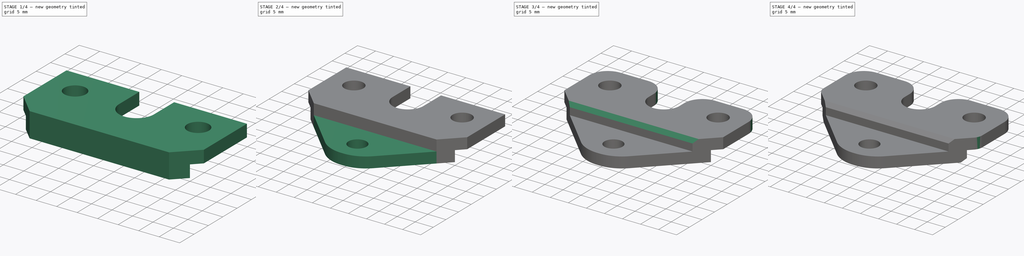
[diagram: build sequence overview — one tinted view per stage of 4, left to right]
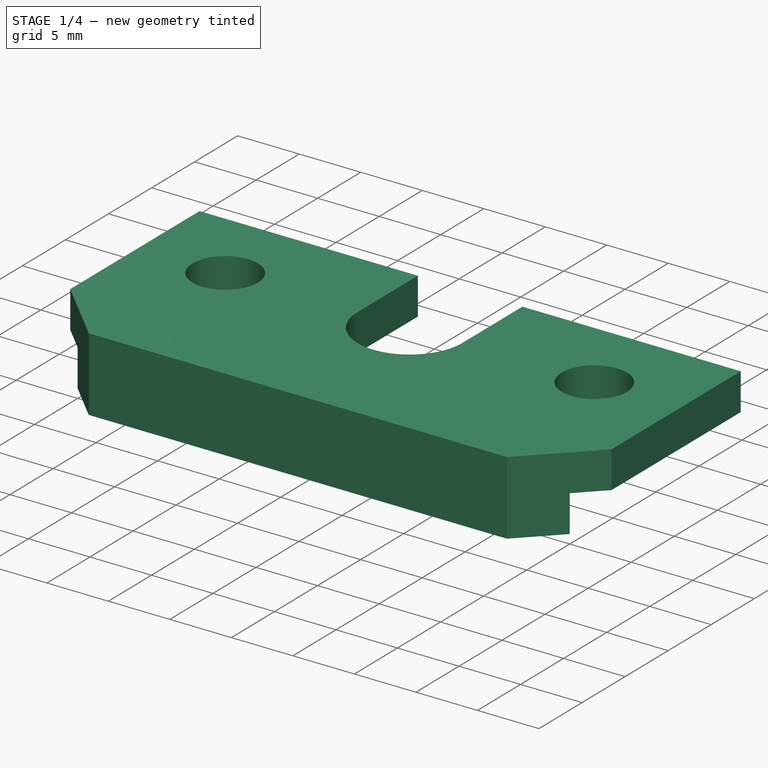
[diagram: stage 1 of 4 — iso view after this stage's code; geometry added in this stage tinted green]
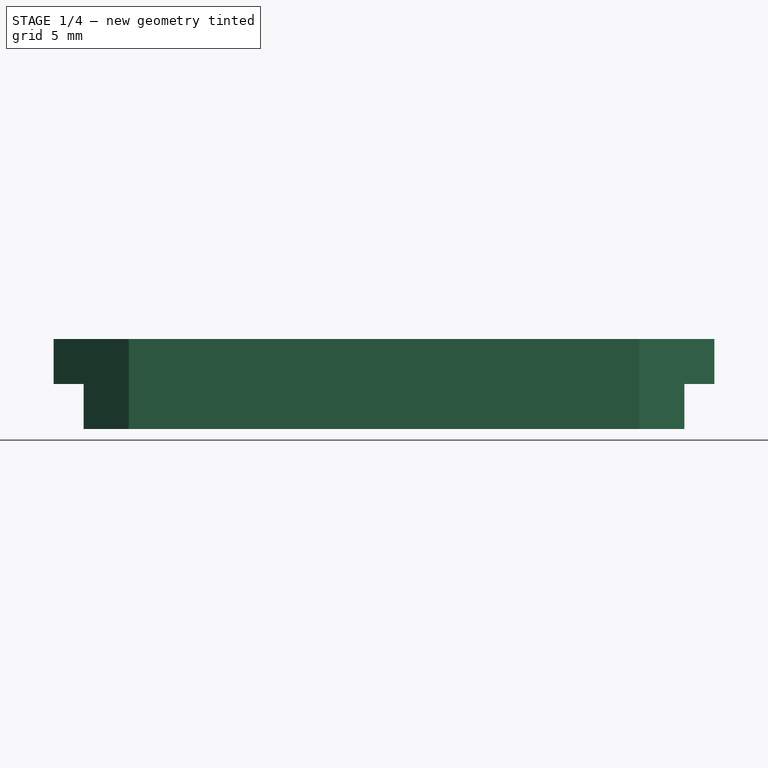
[diagram: stage 1 of 4 — front view after this stage's code; geometry added in this stage tinted green]
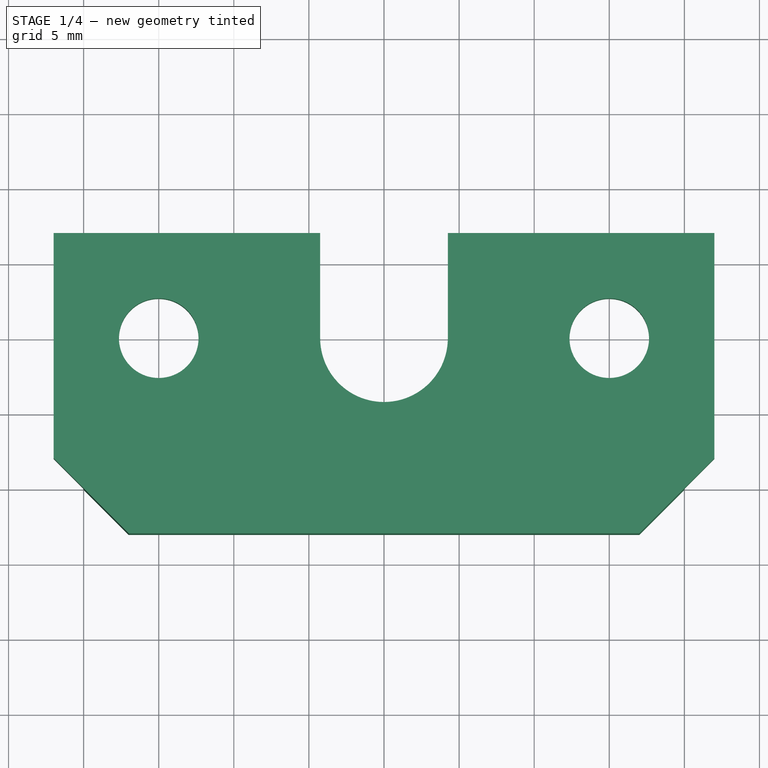
[diagram: stage 1 of 4 — top view after this stage's code; geometry added in this stage tinted green]
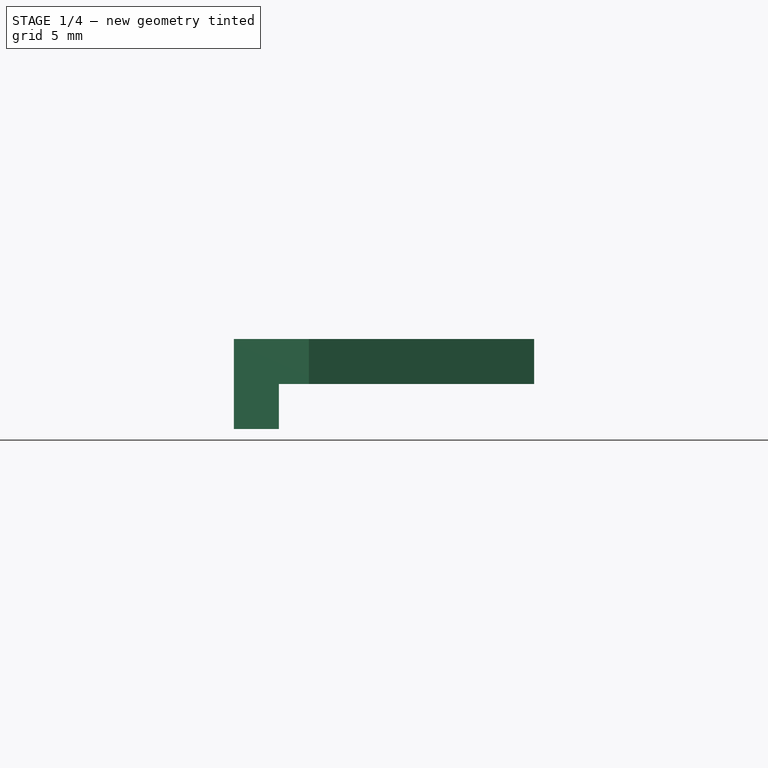
[diagram: stage 1 of 4 — right view after this stage's code; geometry added in this stage tinted green]
FCSTD DOCUMENT  (FreeCAD 0.19R24276 (Git))
Label: roller_support
License: All rights reserved
LicenseURL: http://en.wikipedia.org/wiki/All_rights_reserved
objects: PartDesign::Fillet×4, Sketcher::SketchObject×3, PartDesign::Pad×3, PartDesign::Chamfer×2, PartDesign::Body×1
note: 22 computed .brp shape members not serialized (recipe doc carries the construction recipe); baked Part::Feature solids carry a one-line shape summary decoded from their .brp

FEATURE [Sketcher::SketchObject] Sketch
  FullyConstrained = false
  MapMode = 5
  Support = -> [XY_Plane]
  sketch-geometry (27):
    g0: Circle CenterX=-15 CenterY=0 CenterZ=0 NormalX=0 NormalY=0 NormalZ=1 AngleXU=0 Radius=2.65
    g1: Circle CenterX=15 CenterY=0 CenterZ=0 NormalX=0 NormalY=0 NormalZ=1 AngleXU=0 Radius=2.65
    g2: ArcOfCircle CenterX=0 CenterY=0 CenterZ=0 NormalX=0 NormalY=0 NormalZ=1 AngleXU=0 Radius=4.25 StartAngle=3.14159 EndAngle=6.28319
    g3: LineSegment StartX=-22 StartY=7 StartZ=0 EndX=-4.25 EndY=7 EndZ=0
    g4: LineSegment StartX=22 StartY=7 StartZ=0 EndX=22 EndY=-26 EndZ=0
    g5: LineSegment StartX=22 StartY=-26 StartZ=0 EndX=-22 EndY=-26 EndZ=0
    g6: LineSegment StartX=-22 StartY=-26 StartZ=0 EndX=-22 EndY=7 EndZ=0
    g7: LineSegment StartX=0 StartY=0 StartZ=0 EndX=0 EndY=-26 EndZ=0
    g8: Circle CenterX=0 CenterY=-20 CenterZ=0 NormalX=0 NormalY=0 NormalZ=1 AngleXU=0 Radius=2.5
    g9: LineSegment StartX=-4.25 StartY=-5e-16 StartZ=0 EndX=-4.25 EndY=7 EndZ=0
    g10: LineSegment StartX=4.25 StartY=0 StartZ=0 EndX=4.25 EndY=7 EndZ=0
    g11: LineSegment StartX=4.25 StartY=7 StartZ=0 EndX=22 EndY=7 EndZ=0
    g12: LineSegment StartX=-27.1648 StartY=-10 StartZ=0 EndX=22.6955 EndY=-10 EndZ=0
    g13: LineSegment StartX=-22 StartY=-8 StartZ=0 EndX=-4 EndY=-26 EndZ=0
    g14: LineSegment StartX=4 StartY=-26 StartZ=0 EndX=22 EndY=-8 EndZ=0
    g15: LineSegment StartX=22 StartY=-8 StartZ=0 EndX=22 EndY=7 EndZ=0
    g16: LineSegment StartX=22 StartY=7 StartZ=0 EndX=4.25 EndY=7 EndZ=0
    g17: LineSegment StartX=4.25 StartY=7 StartZ=0 EndX=4.25 EndY=0 EndZ=0
    g18: LineSegment StartX=-4.25 StartY=-5e-16 StartZ=0 EndX=-4.25 EndY=7 EndZ=0
    g19: LineSegment StartX=-4.25 StartY=7 StartZ=0 EndX=-22 EndY=7 EndZ=0
    g20: LineSegment StartX=-22 StartY=7 StartZ=0 EndX=-22 EndY=-8 EndZ=0
    g21: LineSegment StartX=-31.5358 StartY=-14 StartZ=0 EndX=42.4865 EndY=-14 EndZ=0
    g22: LineSegment StartX=-22 StartY=-8 StartZ=0 EndX=22 EndY=-8 EndZ=0
    g23: LineSegment StartX=-17 StartY=-13 StartZ=0 EndX=17 EndY=-13 EndZ=0
    g24: LineSegment StartX=22 StartY=-8 StartZ=0 EndX=17 EndY=-13 EndZ=0
    g25: LineSegment StartX=-22 StartY=-8 StartZ=0 EndX=-17 EndY=-13 EndZ=0
    g26: LineSegment StartX=-17 StartY=-13 StartZ=0 EndX=17 EndY=-13 EndZ=0
  constraints (67):
    c: PointOnObject(g0,g-1)
    c: Diameter(g0) = 5.3
    c: Equal(g0,g1)
    c: DistanceX(g0,g1) = 30
    c: Coincident(g2,g-1)
    c: Diameter(g2) = 8.5
    c: Symmetric(g0,g1,g-1)
    c: Coincident(g11,g4)
    c: Coincident(g4,g5)
    c: Coincident(g5,g6)
    c: Coincident(g6,g3)
    c: Horizontal(g3)
    c: Horizontal(g5)
    c: Vertical(g4)
    c: Vertical(g6)
    c: Coincident(g7,g-1)
    c: PointOnObject(g7,g-2)
    c: Symmetric(g5,g4,g7)
    c: DistanceY(g0,g3) = 7
    c: PointOnObject(g8,g7)
    c: Diameter(g8) = 5
    c: Vertical(g9)
    c: Vertical(g10)
    c: Tangent(g2,g9) = 1.5708
    c: Tangent(g2,g10) = -1.5708
    c: Tangent(g3,g11)
    c: Coincident(g9,g3)
    c: Coincident(g10,g11)
    c: DistanceY(g8,g2) = 20
    c: DistanceY(g7,g8) = 6
    c: Horizontal(g12)
    c: DistanceY(g12,g2) = 10
    c: DistanceX(g3,g4) = 44
    c: PointOnObject(g13,g5)
    c: PointOnObject(g14,g5)
    c: PointOnObject(g13,g6)
    c: PointOnObject(g14,g4)
    c: Angle(g6,g13) = 0.785398
    c: Angle(g14,g4) = 0.785398
    c: Coincident(g15,g4)
    c: Coincident(g16,g15)
    c: Coincident(g16,g10)
    c: Coincident(g17,g16)
    c: Coincident(g17,g2)
    c: Coincident(g18,g2)
    c: Coincident(g18,g3)
    c: Coincident(g19,g18)
    c: Coincident(g19,g3)
    c: Coincident(g20,g19)
    c: Coincident(g20,g13)
    c: Horizontal(g21)
    c: DistanceY(g21,g2) = 14
    c: Coincident(g22,g20)
    c: Horizontal(g22)
    c: DistanceY(g20,g19) = 15
    c: PointOnObject(g23,g14)
    c: PointOnObject(g23,g13)
    c: DistanceY(g23,g12) = 3
    c: Coincident(g24,g15)
    c: Coincident(g25,g20)
    c: Coincident(g26,g23)
    c: Coincident(g23,g26)
    c: Coincident(g23,g24)
    c: Coincident(g25,g26)
    c: Coincident(g14,g15)
    c: Coincident(g14,g22)
    c: Horizontal(g26)
FEATURE [PartDesign::Pad] Pad
  Direction = (1,1,1)
  Length = 3
  Length2 = 100
  Profile = -> Sketch
  Type = 0
FEATURE [Sketcher::SketchObject] Sketch001
  FullyConstrained = false
  MapMode = 5
  Support = -> [XY_Plane]
  sketch-geometry (31):
    g0: Circle CenterX=-15 CenterY=0 CenterZ=0 NormalX=0 NormalY=0 NormalZ=1 AngleXU=0 Radius=2.65
    g1: Circle CenterX=15 CenterY=0 CenterZ=0 NormalX=0 NormalY=0 NormalZ=1 AngleXU=0 Radius=2.65
    g2: ArcOfCircle CenterX=0 CenterY=0 CenterZ=0 NormalX=0 NormalY=0 NormalZ=1 AngleXU=0 Radius=4.25 StartAngle=3.14159 EndAngle=6.28319
    g3: LineSegment StartX=-22 StartY=7 StartZ=0 EndX=-4.25 EndY=7 EndZ=0
    g4: LineSegment StartX=22 StartY=7 StartZ=0 EndX=22 EndY=-26 EndZ=0
    g5: LineSegment StartX=22 StartY=-26 StartZ=0 EndX=-22 EndY=-26 EndZ=0
    g6: LineSegment StartX=-22 StartY=-26 StartZ=0 EndX=-22 EndY=7 EndZ=0
    g7: LineSegment StartX=0 StartY=0 StartZ=0 EndX=0 EndY=-26 EndZ=0
    g8: Circle CenterX=0 CenterY=-20 CenterZ=0 NormalX=0 NormalY=0 NormalZ=1 AngleXU=0 Radius=2.5
    g9: LineSegment StartX=-4.25 StartY=-1.4e-15 StartZ=0 EndX=-4.25 EndY=7 EndZ=0
    g10: LineSegment StartX=4.25 StartY=0 StartZ=0 EndX=4.25 EndY=7 EndZ=0
    g11: LineSegment StartX=4.25 StartY=7 StartZ=0 EndX=22 EndY=7 EndZ=0
    g12: LineSegment StartX=-20 StartY=-10 StartZ=0 EndX=20 EndY=-10 EndZ=0
    g13: LineSegment StartX=-22 StartY=-8 StartZ=0 EndX=-4 EndY=-26 EndZ=0
    g14: LineSegment StartX=4 StartY=-26 StartZ=0 EndX=22 EndY=-8 EndZ=0
    g15: LineSegment StartX=-4 StartY=-26 StartZ=0 EndX=4 EndY=-26 EndZ=0
    g16: LineSegment StartX=4 StartY=-26 StartZ=0 EndX=22 EndY=-8 EndZ=0
    g17: LineSegment StartX=22 StartY=-8 StartZ=0 EndX=22 EndY=7 EndZ=0
    g18: LineSegment StartX=22 StartY=7 StartZ=0 EndX=4.25 EndY=7 EndZ=0
    g19: LineSegment StartX=4.25 StartY=7 StartZ=0 EndX=4.25 EndY=0 EndZ=0
    g20: LineSegment StartX=-4.25 StartY=-1.4e-15 StartZ=0 EndX=-4.25 EndY=7 EndZ=0
    g21: LineSegment StartX=-4.25 StartY=7 StartZ=0 EndX=-22 EndY=7 EndZ=0
    g22: LineSegment StartX=-22 StartY=7 StartZ=0 EndX=-22 EndY=-8 EndZ=0
    g23: LineSegment StartX=-22 StartY=-8 StartZ=0 EndX=-4 EndY=-26 EndZ=0
    g24: LineSegment StartX=-31.5358 StartY=-14 StartZ=0 EndX=42.4865 EndY=-14 EndZ=0
    g25: LineSegment StartX=-22 StartY=-8 StartZ=0 EndX=22 EndY=-8 EndZ=0
    g26: LineSegment StartX=-17 StartY=-13 StartZ=0 EndX=17 EndY=-13 EndZ=0
    g27: LineSegment StartX=-17 StartY=-13 StartZ=0 EndX=17 EndY=-13 EndZ=0
    g28: LineSegment StartX=20 StartY=-10 StartZ=0 EndX=-20 EndY=-10 EndZ=0
    g29: LineSegment StartX=-17 StartY=-13 StartZ=0 EndX=-20 EndY=-10 EndZ=0
    g30: LineSegment StartX=20 StartY=-10 StartZ=0 EndX=17 EndY=-13 EndZ=0
  constraints (77):
    c: PointOnObject(g0,g-1)
    c: Diameter(g0) = 5.3
    c: Equal(g0,g1)
    c: DistanceX(g0,g1) = 30
    c: Coincident(g2,g-1)
    c: Diameter(g2) = 8.5
    c: Symmetric(g0,g1,g-1)
    c: Coincident(g11,g4)
    c: Coincident(g4,g5)
    c: Coincident(g5,g6)
    c: Coincident(g6,g3)
    c: Horizontal(g3)
    c: Horizontal(g5)
    c: Vertical(g4)
    c: Vertical(g6)
    c: Coincident(g7,g-1)
    c: PointOnObject(g7,g-2)
    c: Symmetric(g5,g4,g7)
    c: DistanceY(g0,g3) = 7
    c: PointOnObject(g8,g7)
    c: Diameter(g8) = 5
    c: Vertical(g9)
    c: Vertical(g10)
    c: Tangent(g2,g9) = 1.5708
    c: Tangent(g2,g10) = -1.5708
    c: Tangent(g3,g11)
    c: Coincident(g9,g3)
    c: Coincident(g10,g11)
    c: DistanceY(g8,g2) = 20
    c: DistanceY(g7,g8) = 6
    c: Horizontal(g12)
    c: DistanceX(g3,g4) = 44
    c: PointOnObject(g13,g5)
    c: PointOnObject(g14,g5)
    c: PointOnObject(g13,g6)
    c: PointOnObject(g14,g4)
    c: Angle(g6,g13) = 0.785398
    c: Angle(g14,g4) = 0.785398
    c: Coincident(g15,g13)
    c: Coincident(g15,g14)
    c: Coincident(g16,g15)
    c: Coincident(g16,g14)
    c: Coincident(g17,g16)
    c: Coincident(g17,g4)
    c: Coincident(g18,g17)
    c: Coincident(g18,g10)
    c: Coincident(g19,g18)
    c: Coincident(g19,g2)
    c: Coincident(g20,g2)
    c: Coincident(g20,g3)
    c: Coincident(g21,g20)
    c: Coincident(g21,g3)
    c: Coincident(g22,g21)
    c: Coincident(g22,g13)
    c: Coincident(g23,g22)
    c: Coincident(g23,g15)
    c: Horizontal(g24)
    c: DistanceY(g24,g2) = 14
    c: Coincident(g25,g22)
    c: Coincident(g25,g16)
    c: Horizontal(g25)
    c: DistanceY(g22,g21) = 15
    c: PointOnObject(g12,g13)
    c: PointOnObject(g12,g14)
    c: DistanceY(g12,g1) = 10
    c: Horizontal(g26)
    c: PointOnObject(g26,g14)
    c: PointOnObject(g26,g13)
    c: DistanceY(g26,g12) = 3
    c: Coincident(g27,g26)
    c: Coincident(g28,g12)
    c: Coincident(g29,g27)
    c: Coincident(g30,g28)
    c: Coincident(g27,g26)
    c: Coincident(g27,g30)
    c: Coincident(g28,g12)
    c: Coincident(g28,g29)
FEATURE [PartDesign::Pad] Pad001
  BaseFeature = -> Pad
  Direction = (1,1,1)
  Length = 3
  Length2 = 100
  Profile = -> Sketch001
  Reversed = true
  Type = 0
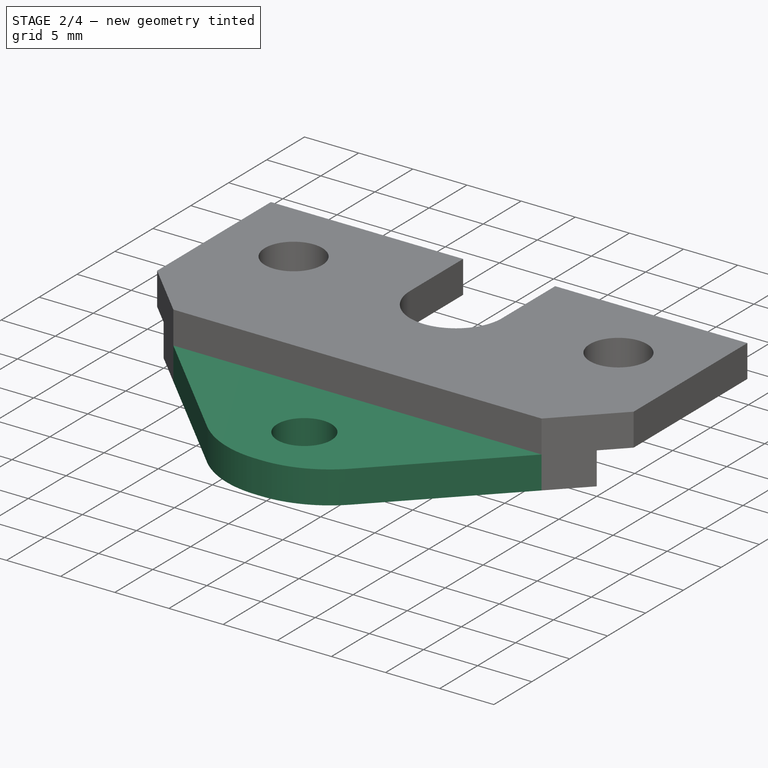
[diagram: stage 2 of 4 — iso view after this stage's code; geometry added in this stage tinted green]
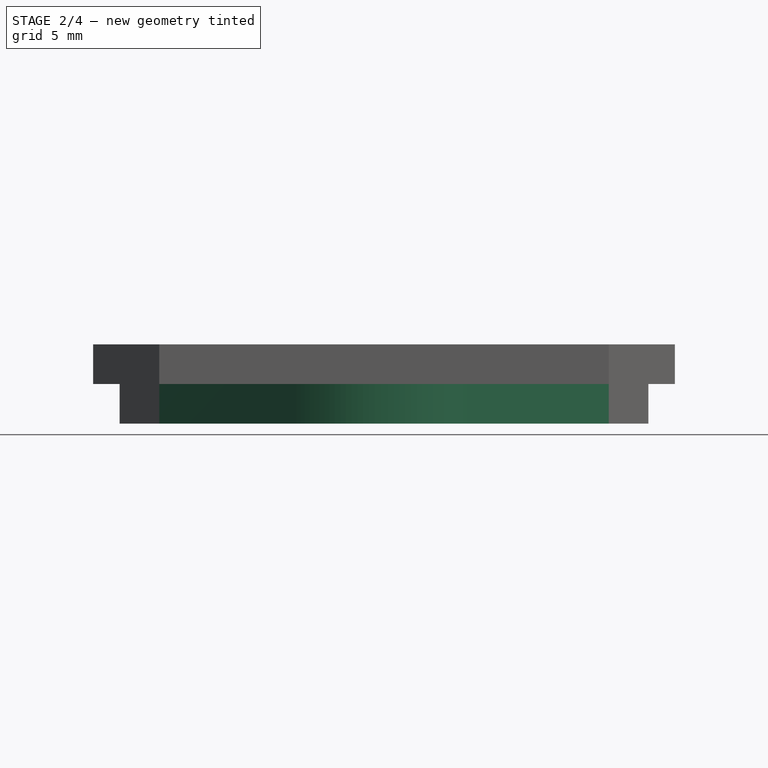
[diagram: stage 2 of 4 — front view after this stage's code; geometry added in this stage tinted green]
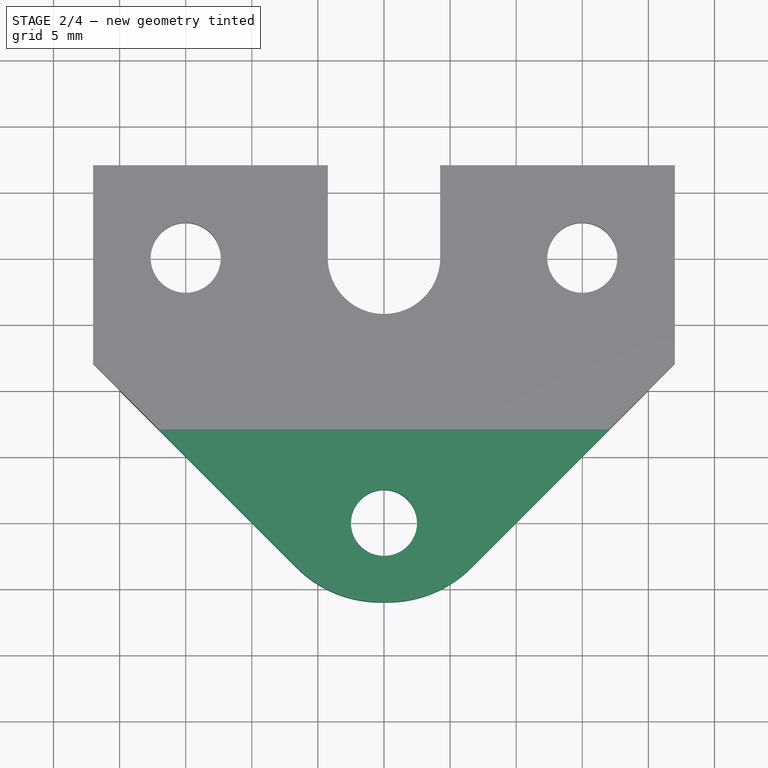
[diagram: stage 2 of 4 — top view after this stage's code; geometry added in this stage tinted green]
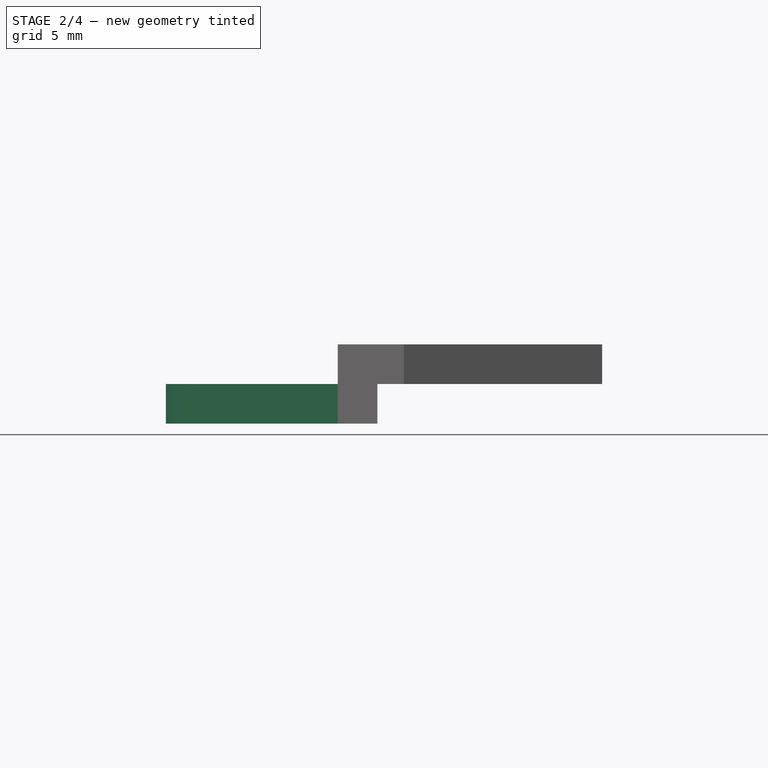
[diagram: stage 2 of 4 — right view after this stage's code; geometry added in this stage tinted green]
FEATURE [Sketcher::SketchObject] Sketch002
  FullyConstrained = false
  MapMode = 5
  Support = -> [XY_Plane]
  sketch-geometry (30):
    g0: Circle CenterX=-15 CenterY=0 CenterZ=0 NormalX=0 NormalY=0 NormalZ=1 AngleXU=0 Radius=2.65
    g1: Circle CenterX=15 CenterY=0 CenterZ=0 NormalX=0 NormalY=0 NormalZ=1 AngleXU=0 Radius=2.65
    g2: ArcOfCircle CenterX=0 CenterY=0 CenterZ=0 NormalX=0 NormalY=0 NormalZ=1 AngleXU=0 Radius=4.25 StartAngle=3.14159 EndAngle=6.28319
    g3: LineSegment StartX=-22 StartY=7 StartZ=0 EndX=-4.25 EndY=7 EndZ=0
    g4: LineSegment StartX=22 StartY=7 StartZ=0 EndX=22 EndY=-26 EndZ=0
    g5: LineSegment StartX=22 StartY=-26 StartZ=0 EndX=-22 EndY=-26 EndZ=0
    g6: LineSegment StartX=-22 StartY=-26 StartZ=0 EndX=-22 EndY=7 EndZ=0
    g7: LineSegment StartX=0 StartY=0 StartZ=0 EndX=0 EndY=-26 EndZ=0
    g8: Circle CenterX=0 CenterY=-20 CenterZ=0 NormalX=0 NormalY=0 NormalZ=1 AngleXU=0 Radius=2.5
    g9: LineSegment StartX=-4.25 StartY=-1.4e-15 StartZ=0 EndX=-4.25 EndY=7 EndZ=0
    g10: LineSegment StartX=4.25 StartY=-9e-16 StartZ=0 EndX=4.25 EndY=7 EndZ=0
    g11: LineSegment StartX=4.25 StartY=7 StartZ=0 EndX=22 EndY=7 EndZ=0
    g12: LineSegment StartX=-27.1648 StartY=-10 StartZ=0 EndX=22.6955 EndY=-10 EndZ=0
    g13: LineSegment StartX=-22 StartY=-8 StartZ=0 EndX=-4 EndY=-26 EndZ=0
    g14: LineSegment StartX=4 StartY=-26 StartZ=0 EndX=22 EndY=-8 EndZ=0
    g15: LineSegment StartX=22 StartY=-8 StartZ=0 EndX=22 EndY=7 EndZ=0
    g16: LineSegment StartX=22 StartY=7 StartZ=0 EndX=4.25 EndY=7 EndZ=0
    g17: LineSegment StartX=4.25 StartY=7 StartZ=0 EndX=4.25 EndY=-9e-16 EndZ=0
    g18: LineSegment StartX=-4.25 StartY=-1.4e-15 StartZ=0 EndX=-4.25 EndY=7 EndZ=0
    g19: LineSegment StartX=-4.25 StartY=7 StartZ=0 EndX=-22 EndY=7 EndZ=0
    g20: LineSegment StartX=-22 StartY=7 StartZ=0 EndX=-22 EndY=-8 EndZ=0
    g21: LineSegment StartX=-31.5358 StartY=-14 StartZ=0 EndX=42.4865 EndY=-14 EndZ=0
    g22: LineSegment StartX=-22 StartY=-8 StartZ=0 EndX=22 EndY=-8 EndZ=0
    g23: LineSegment StartX=-17 StartY=-13 StartZ=0 EndX=17 EndY=-13 EndZ=0
    g24: LineSegment StartX=22 StartY=-8 StartZ=0 EndX=17 EndY=-13 EndZ=0
    g25: LineSegment StartX=-22 StartY=-8 StartZ=0 EndX=-17 EndY=-13 EndZ=0
    g26: LineSegment StartX=-17 StartY=-13 StartZ=0 EndX=17 EndY=-13 EndZ=0
    g27: LineSegment StartX=17 StartY=-13 StartZ=0 EndX=4 EndY=-26 EndZ=0
    g28: LineSegment StartX=4 StartY=-26 StartZ=0 EndX=-4 EndY=-26 EndZ=0
    g29: LineSegment StartX=-17 StartY=-13 StartZ=0 EndX=-4 EndY=-26 EndZ=0
  constraints (73):
    c: PointOnObject(g0,g-1)
    c: Diameter(g0) = 5.3
    c: Equal(g0,g1)
    c: DistanceX(g0,g1) = 30
    c: Coincident(g2,g-1)
    c: Diameter(g2) = 8.5
    c: Symmetric(g0,g1,g-1)
    c: Coincident(g11,g4)
    c: Coincident(g4,g5)
    c: Coincident(g5,g6)
    c: Coincident(g6,g3)
    c: Horizontal(g3)
    c: Horizontal(g5)
    c: Vertical(g4)
    c: Vertical(g6)
    c: Coincident(g7,g-1)
    c: PointOnObject(g7,g-2)
    c: Symmetric(g5,g4,g7)
    c: DistanceY(g0,g3) = 7
    c: PointOnObject(g8,g7)
    c: Diameter(g8) = 5
    c: Vertical(g9)
    c: Vertical(g10)
    c: Tangent(g2,g9) = 1.5708
    c: Tangent(g2,g10) = -1.5708
    c: Tangent(g3,g11)
    c: Coincident(g9,g3)
    c: Coincident(g10,g11)
    c: DistanceY(g8,g2) = 20
    c: DistanceY(g7,g8) = 6
    c: Horizontal(g12)
    c: DistanceY(g12,g2) = 10
    c: DistanceX(g3,g4) = 44
    c: PointOnObject(g13,g5)
    c: PointOnObject(g14,g5)
    c: PointOnObject(g13,g6)
    c: PointOnObject(g14,g4)
    c: Angle(g6,g13) = 0.785398
    c: Angle(g14,g4) = 0.785398
    c: Coincident(g15,g4)
    c: Coincident(g16,g15)
    c: Coincident(g16,g10)
    c: Coincident(g17,g16)
    c: Coincident(g17,g2)
    c: Coincident(g18,g2)
    c: Coincident(g18,g3)
    c: Coincident(g19,g18)
    c: Coincident(g19,g3)
    c: Coincident(g20,g19)
    c: Coincident(g20,g13)
    c: Horizontal(g21)
    c: DistanceY(g21,g2) = 14
    c: Coincident(g22,g20)
    c: Horizontal(g22)
    c: DistanceY(g20,g19) = 15
    c: PointOnObject(g23,g14)
    c: PointOnObject(g23,g13)
    c: DistanceY(g23,g12) = 3
    c: Coincident(g24,g15)
    c: Coincident(g25,g20)
    c: Coincident(g26,g23)
    c: Coincident(g23,g26)
    c: Coincident(g23,g24)
    c: Coincident(g25,g26)
    c: Coincident(g14,g15)
    c: Coincident(g14,g22)
    c: Horizontal(g26)
    c: Coincident(g27,g26)
    c: Coincident(g28,g14)
    c: Coincident(g29,g26)
    c: Coincident(g29,g13)
    c: Coincident(g29,g28)
    c: Coincident(g28,g27)
FEATURE [PartDesign::Pad] Pad002
  BaseFeature = -> Pad001
  Direction = (1,1,1)
  Length = 3
  Length2 = 100
  Profile = -> Sketch002
  Reversed = true
  Type = 0
FEATURE [PartDesign::Fillet] Fillet
  Base = -> Pad002 [Edge54,Edge52]
  BaseFeature = -> Pad002
  Radius = 9
  SupportTransform = false
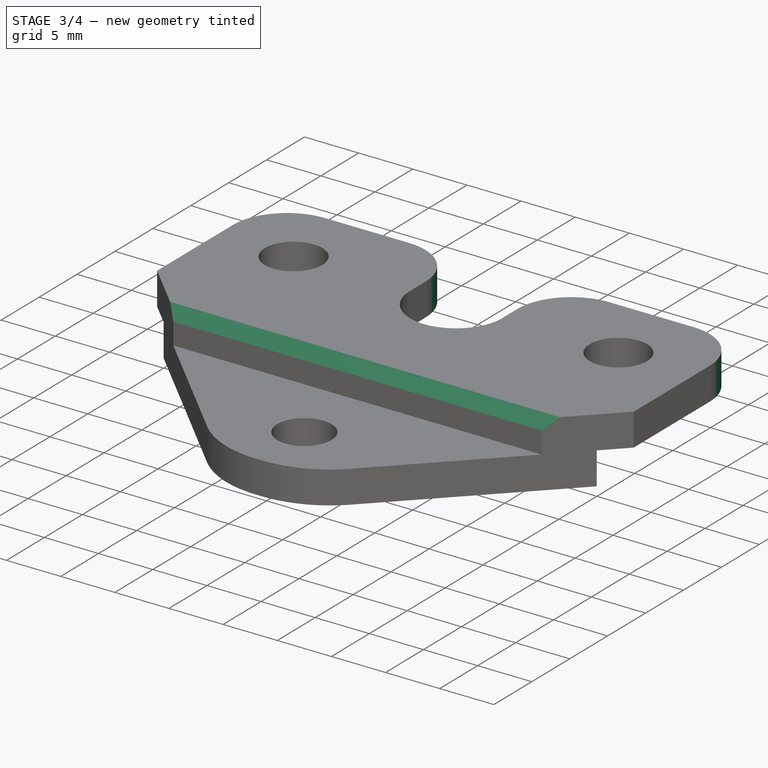
[diagram: stage 3 of 4 — iso view after this stage's code; geometry added in this stage tinted green]
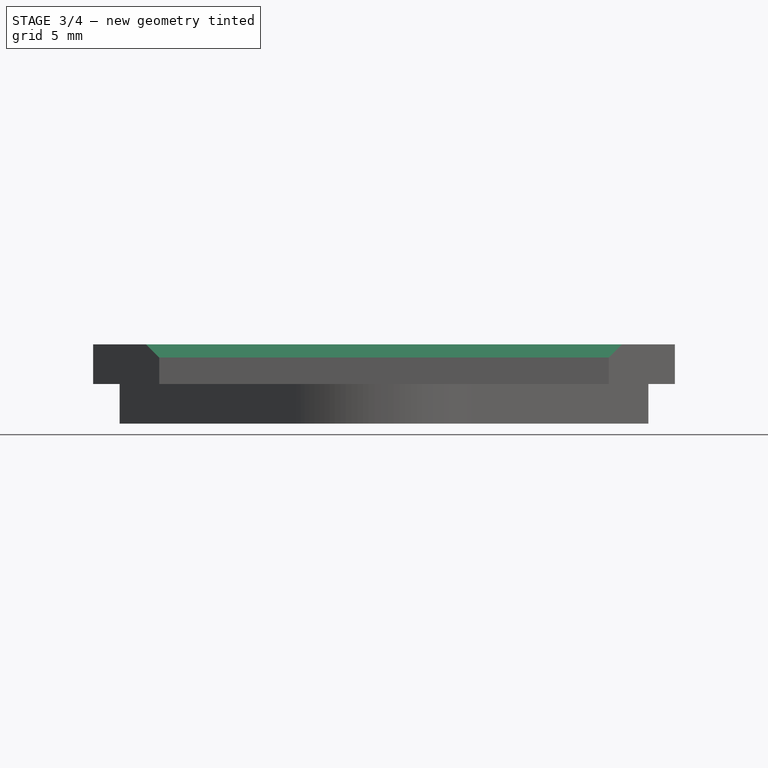
[diagram: stage 3 of 4 — front view after this stage's code; geometry added in this stage tinted green]
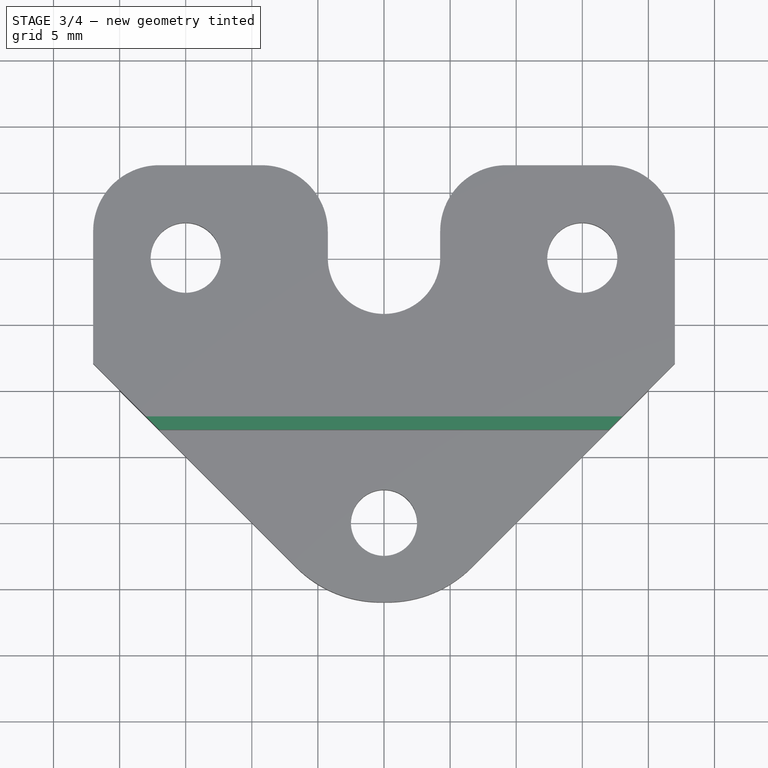
[diagram: stage 3 of 4 — top view after this stage's code; geometry added in this stage tinted green]
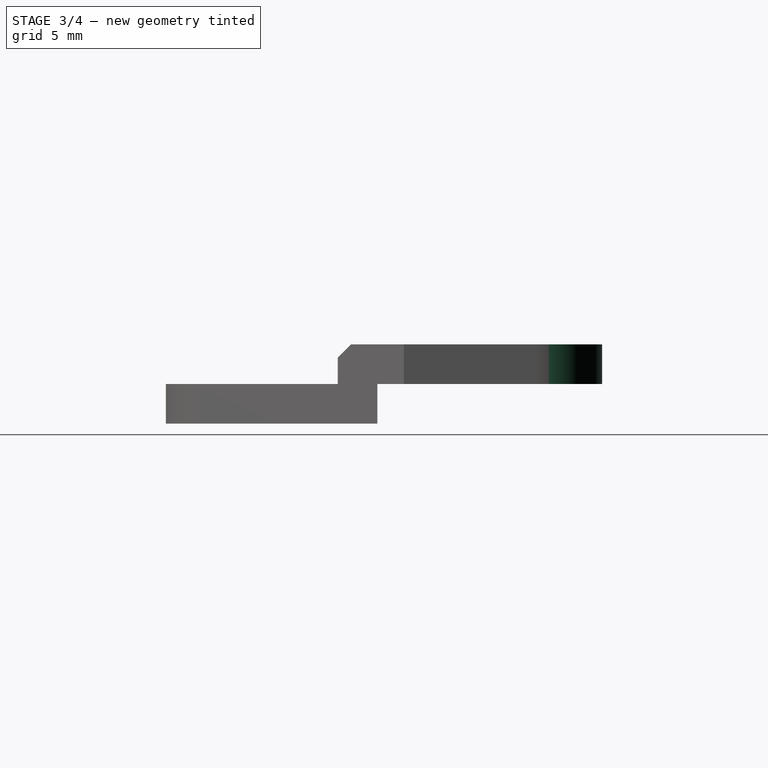
[diagram: stage 3 of 4 — right view after this stage's code; geometry added in this stage tinted green]
FEATURE [PartDesign::Fillet] Fillet001
  Base = -> Fillet [Edge58,Edge48]
  BaseFeature = -> Fillet
  Radius = 5
  SupportTransform = false
FEATURE [PartDesign::Fillet] Fillet002
  Base = -> Fillet001 [Edge29,Edge17]
  BaseFeature = -> Fillet001
  Radius = 5
  SupportTransform = false
FEATURE [PartDesign::Chamfer] Chamfer
  Angle = 45
  Base = -> Fillet002 [Edge9]
  BaseFeature = -> Fillet002
  ChamferType = 0
  FlipDirection = false
  Size = 1
  Size2 = 1
  SupportTransform = false
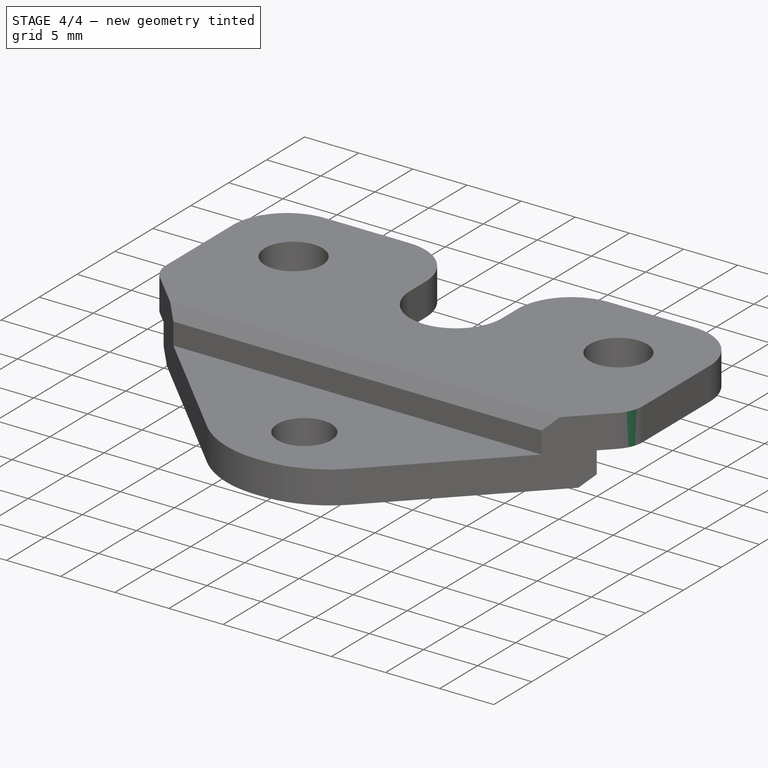
[diagram: stage 4 of 4 — iso view after this stage's code; geometry added in this stage tinted green]
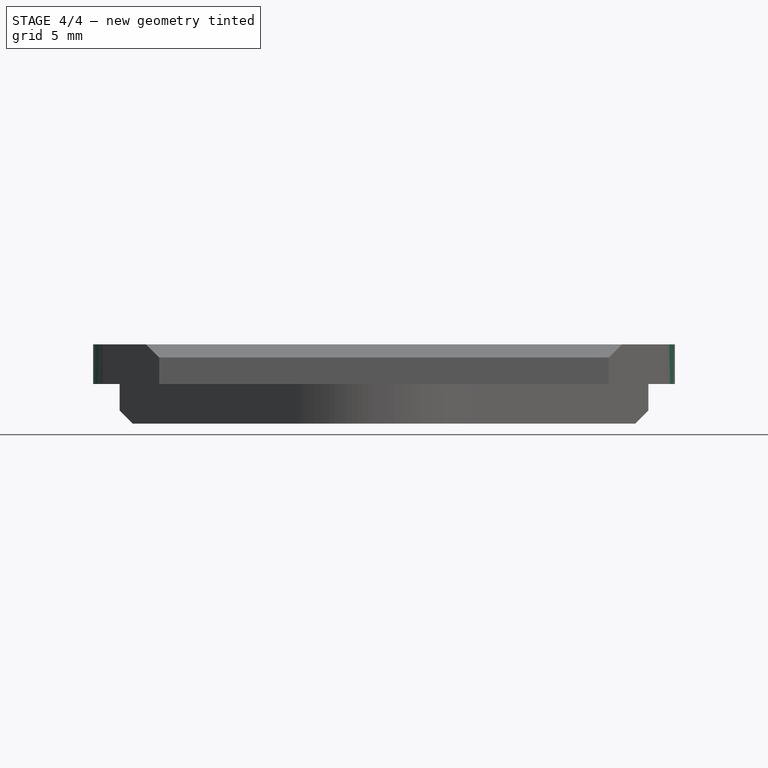
[diagram: stage 4 of 4 — front view after this stage's code; geometry added in this stage tinted green]
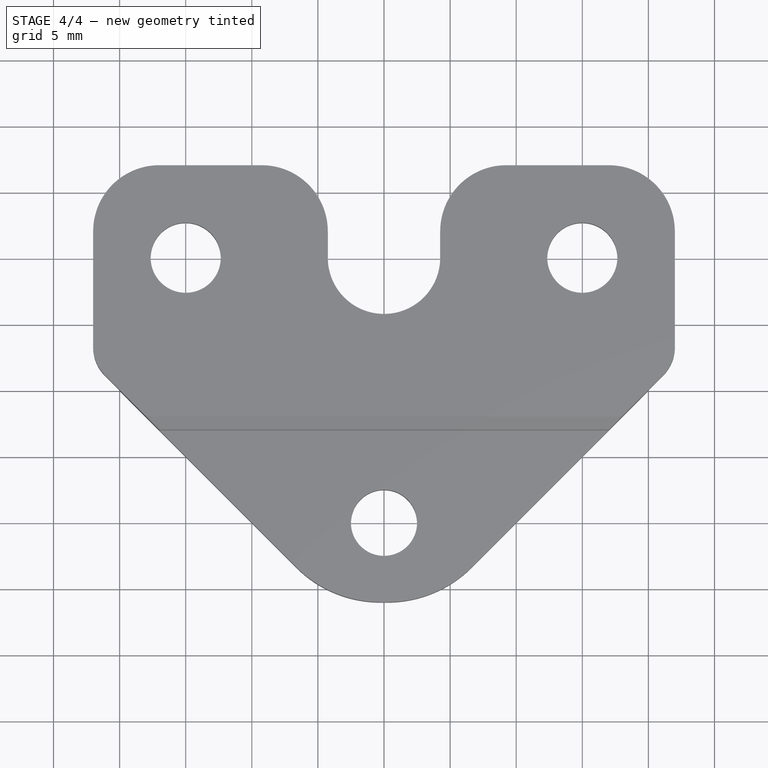
[diagram: stage 4 of 4 — top view after this stage's code; geometry added in this stage tinted green]
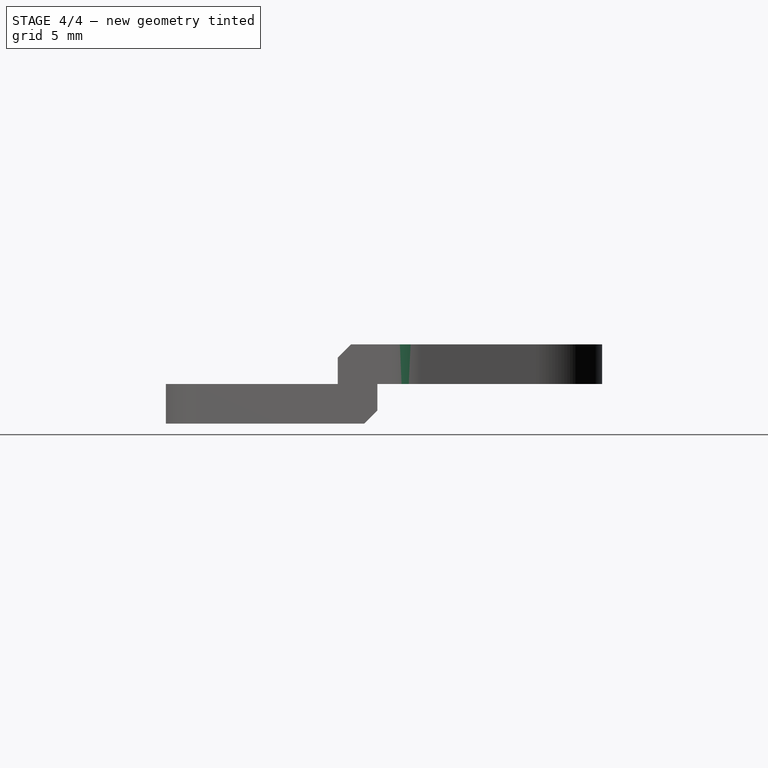
[diagram: stage 4 of 4 — right view after this stage's code; geometry added in this stage tinted green]
FEATURE [PartDesign::Chamfer] Chamfer001
  Angle = 45
  Base = -> Chamfer [Edge67]
  BaseFeature = -> Chamfer
  ChamferType = 0
  FlipDirection = false
  Size = 1
  Size2 = 1
  SupportTransform = false
FEATURE [PartDesign::Fillet] Fillet003
  Base = -> Chamfer001 [Edge15,Edge73]
  BaseFeature = -> Chamfer001
  Radius = 3
  SupportTransform = false
FEATURE [PartDesign::Body] Body
  Group = -> [Sketch,Pad,Sketch001,Pad001,Sketch002,Pad002,Fillet,Fillet001,Fillet002,Chamfer,Chamfer001,Fillet003]
  Origin = -> Origin
  Tip = -> Fillet003
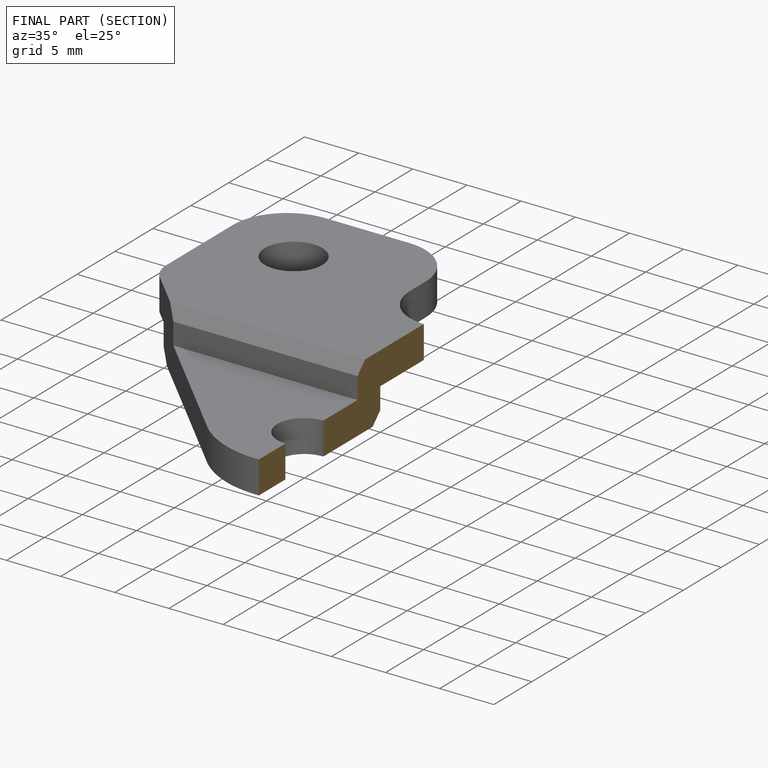
[diagram: finished part — half-section view (interior)]
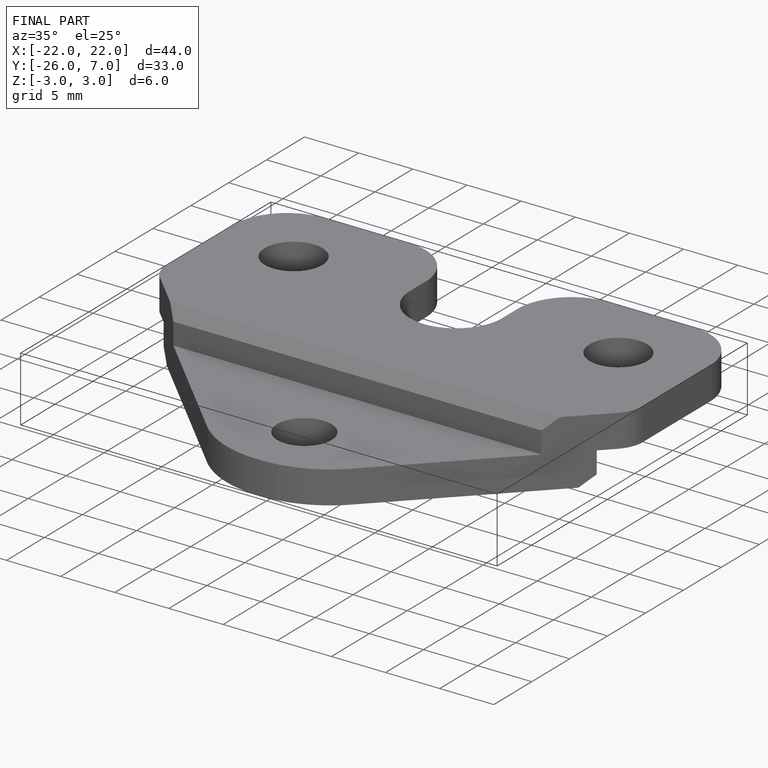
[diagram: finished part — iso view with bounding-box wireframe]
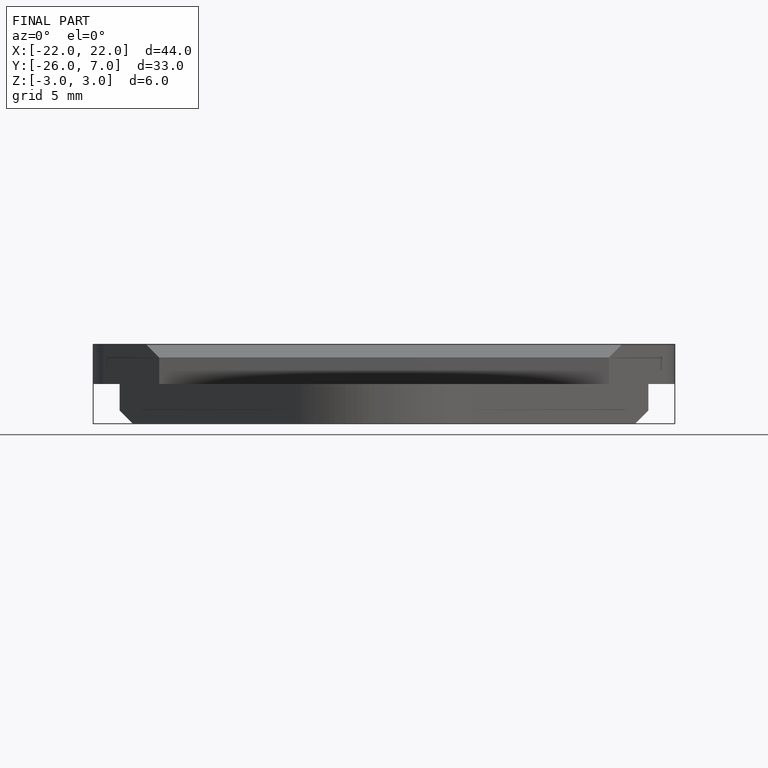
[diagram: finished part — front view with bounding-box wireframe]
